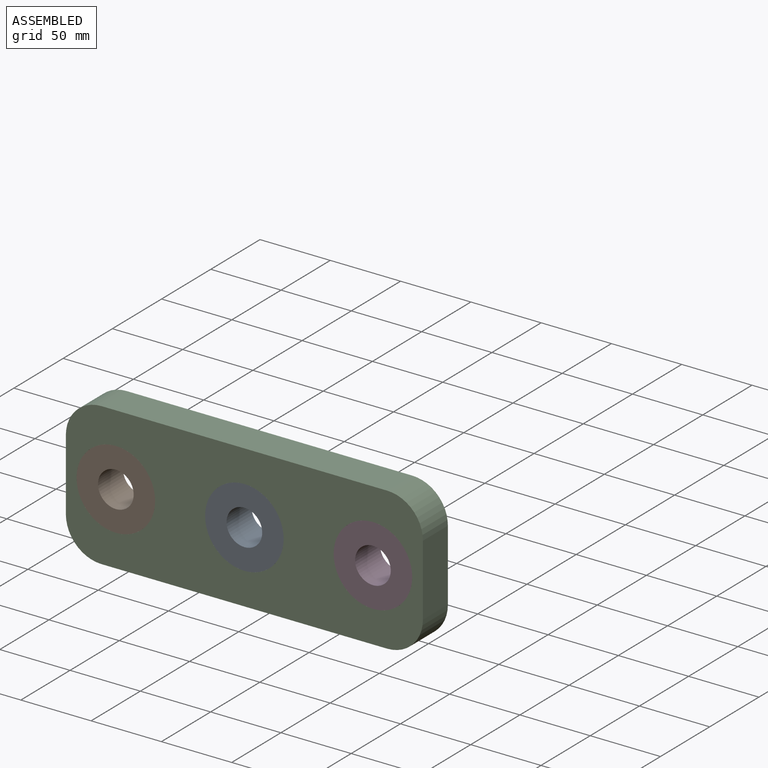
[diagram: assembled view]
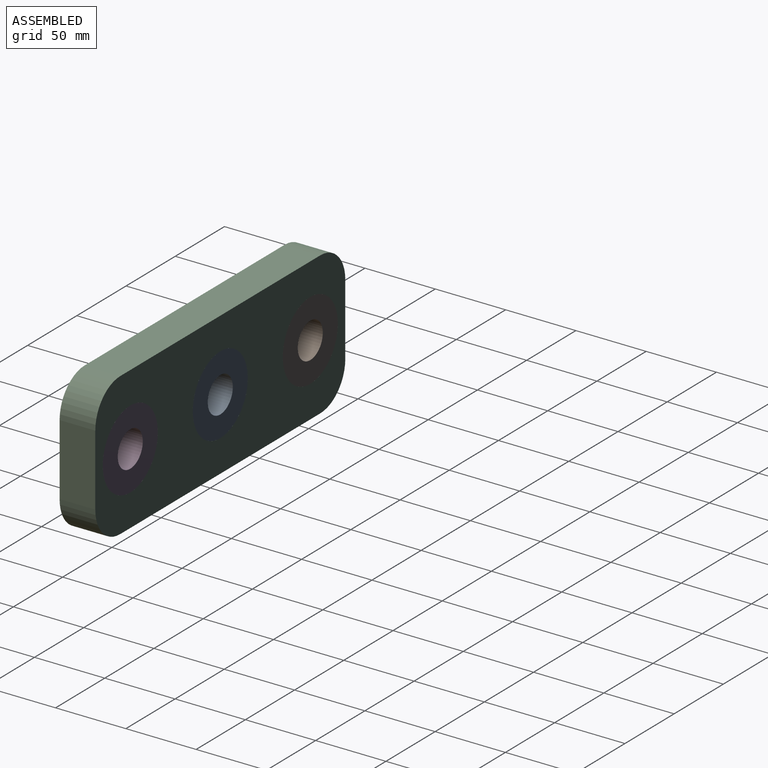
[diagram: assembled view, second angle]
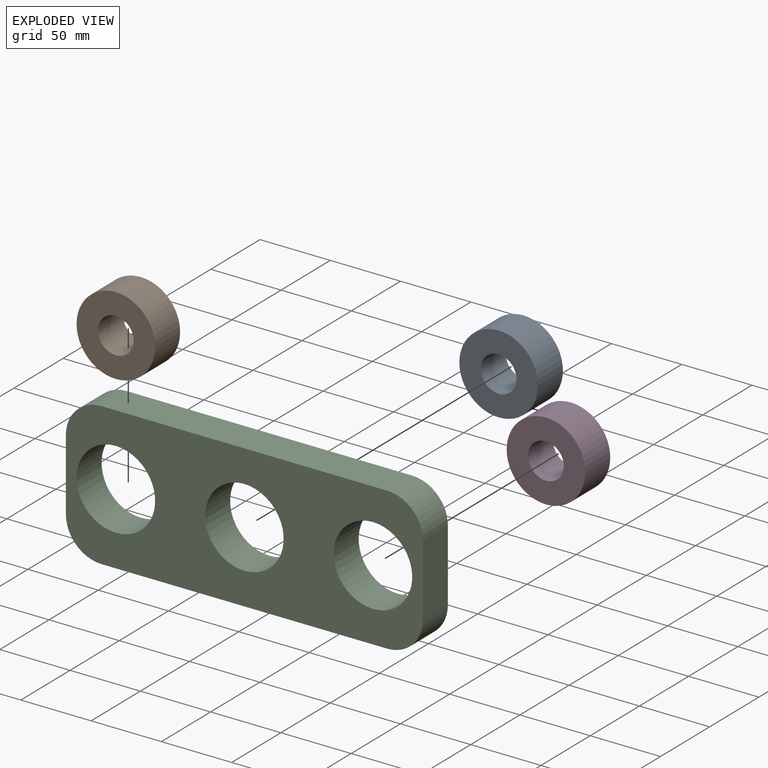
[diagram: exploded view]
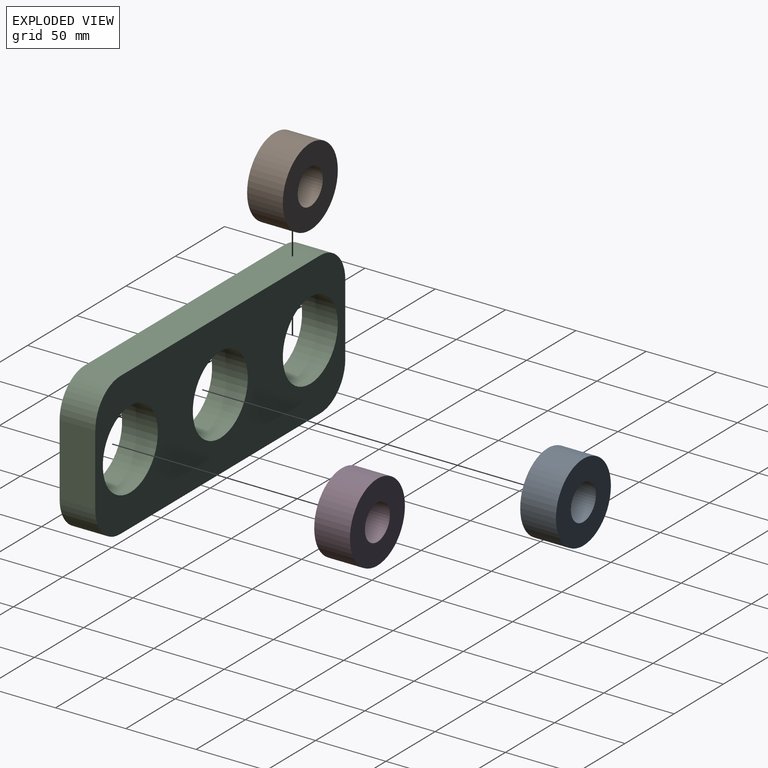
[diagram: exploded view, second angle]
ASSEMBLY  parts=4 mates=6
PART A: 4 faces, bbox 55.9x25.4x55.9 mm
  f0: plane 55.88x55.88mm, normal (0,1,0), area 1945.8mm2, adj f1,f3
  f1: cylinder r=27.94mm len=55.88mm, axis (0,-1,0), area 4459mm2, adj f0,f2
  f2: plane 55.88x55.88mm, normal (0,-1,0), area 1945.8mm2, adj f1,f3
  f3: cylinder r=12.7mm len=25.4mm, axis (0,-1,0), area 2026.8mm2, adj f0,f2
PART B: same geometry as A
PART C: 13 faces, bbox 254x25.4x101.6 mm
  f0: plane 50.8x25.4mm, normal (1,0,0), area 1290.3mm2, adj f5,f6,f9,f12
  f1: plane 203.2x25.4mm, normal (0,0,1), area 5161.3mm2, adj f5,f6,f9,f10
  f2: plane 50.8x25.4mm, normal (-1,0,0), area 1290.3mm2, adj f5,f6,f10,f11
  f3: plane 203.2x25.4mm, normal (0,0,-1), area 5161.3mm2, adj f5,f6,f11,f12
  f4: cylinder r=27.94mm len=55.88mm, axis (0,1,0), area 4459mm2, adj f5,f6
  f5: plane 254x101.6mm, normal (0,-1,0), area 17895.2mm2, adj f0,f1,f2,f3,f4,f7,f8,f9
  f6: plane 254x101.6mm, normal (0,1,0), area 17895.2mm2, adj f0,f1,f2,f3,f4,f7,f8,f9
  f7: cylinder r=27.94mm len=55.88mm, axis (0,-1,0), area 4459mm2, adj f5,f6
  f8: cylinder r=27.94mm len=55.88mm, axis (0,-1,0), area 4459mm2, adj f5,f6
  f9: cylinder r=25.4mm len=25.4mm, axis (0,-1,0), area 1013.4mm2, adj f0,f1,f5,f6
  f10: cylinder r=25.4mm len=25.4mm, axis (0,1,0), area 1013.4mm2, adj f1,f2,f5,f6
  f11: cylinder r=25.4mm len=25.4mm, axis (0,-1,0), area 1013.4mm2, adj f2,f3,f5,f6
  f12: cylinder r=25.4mm len=25.4mm, axis (0,1,0), area 1013.4mm2, adj f0,f3,f5,f6
PART D: same geometry as A
PLACE A t=(-62.23,-64.11,28.72)mm
PLACE B t=(-153.67,-64.11,28.72)mm
PLACE C t=(-62.23,-51.41,28.72)mm
PLACE D t=(29.21,-64.11,28.72)mm
MATE cylindrical A.f1 <-> C.f4  axis (0,1,0) through (-62.23,-51.41,28.72)mm
MATE planar D.f1 <-> C.f4  axis (0,-1,0) through (29.21,-76.81,28.72)mm
MATE cylindrical D.f1 <-> C.f8  axis (0,-1,0) through (29.21,-64.11,28.72)mm
MATE cylindrical B.f1 <-> C.f7  axis (0,-1,0) through (-153.67,-64.11,28.72)mm
MATE planar A.f1 <-> C.f4  axis (0,-1,0) through (-62.23,-76.81,28.72)mm
MATE planar C.f7 <-> C.f4  axis (0,-1,0) through (-153.67,-76.81,28.72)mm
